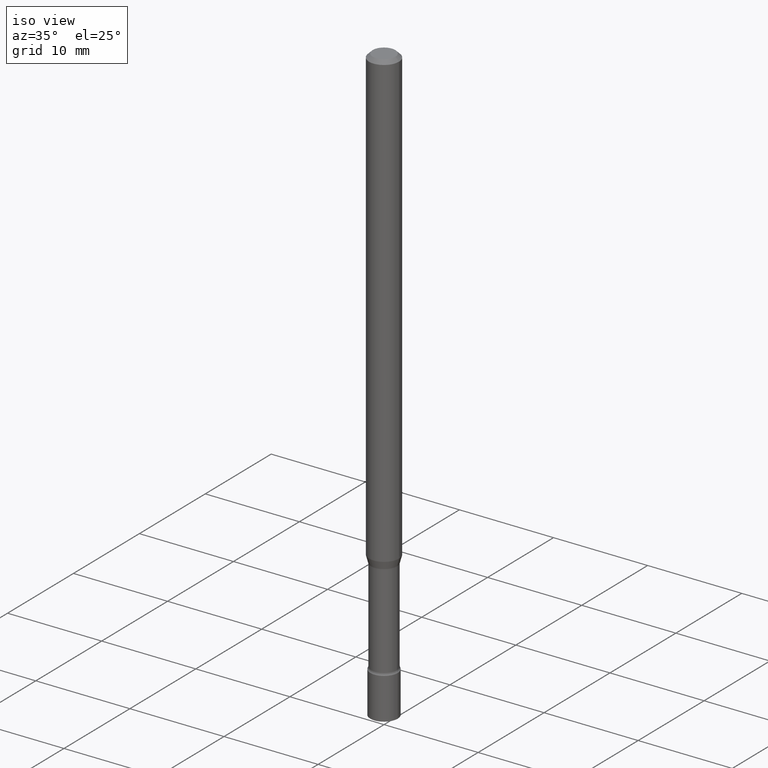
[diagram: clean part render]
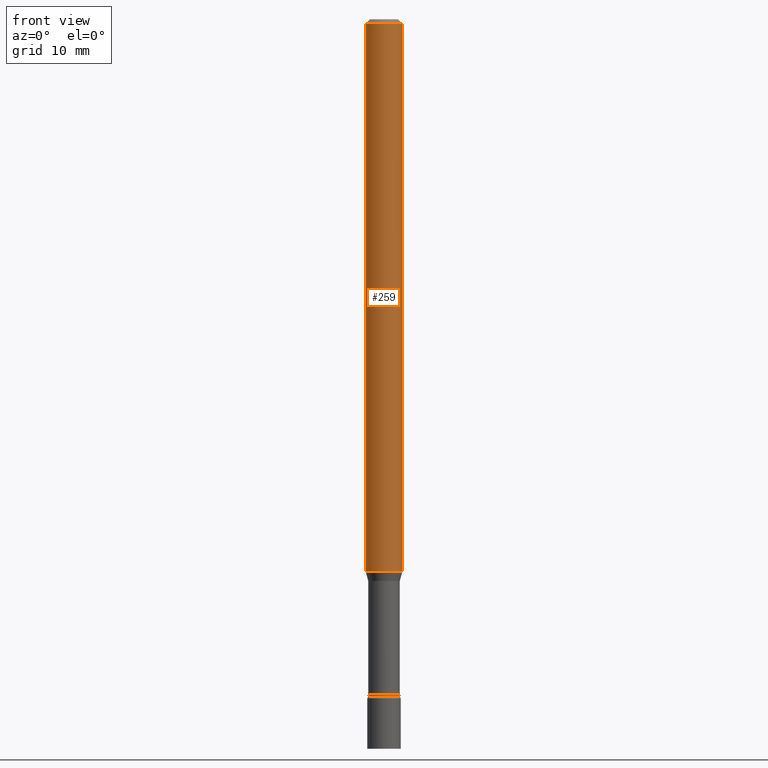
[diagram: tour spotlight — one face highlighted and labeled with its STEP entity id]
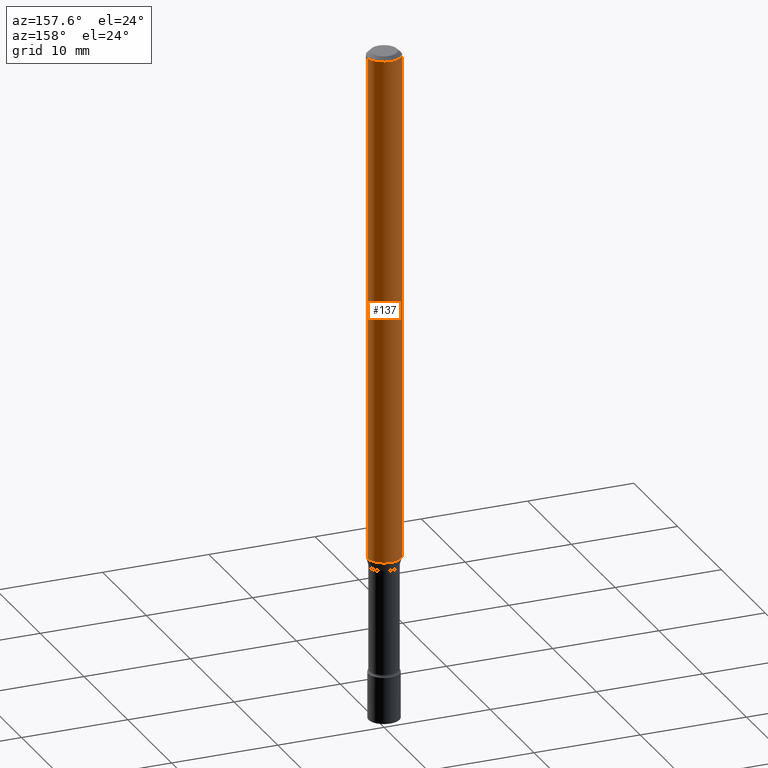
[diagram: tour spotlight — one face highlighted and labeled with its STEP entity id]
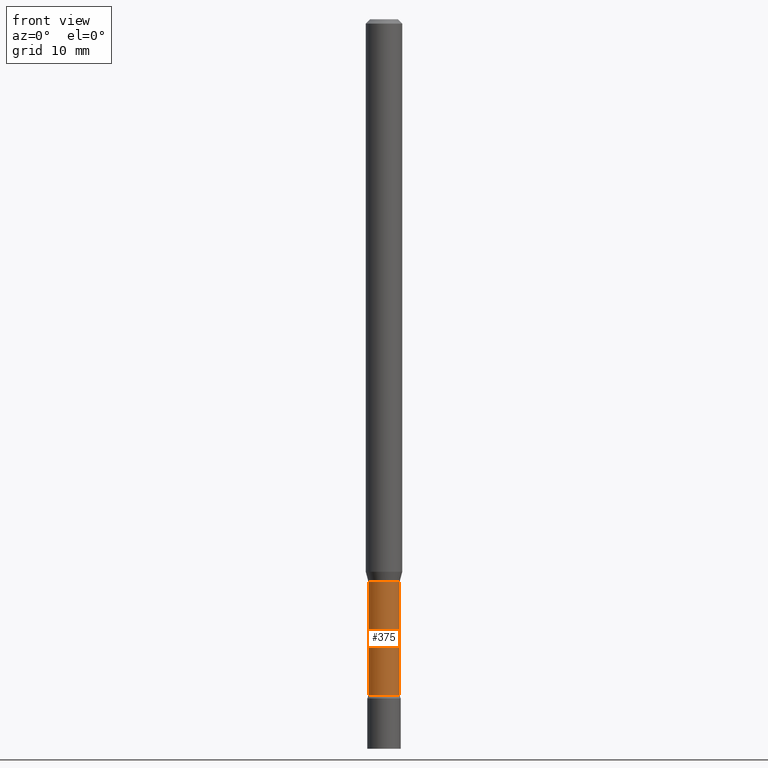
[diagram: tour spotlight — one face highlighted and labeled with its STEP entity id]
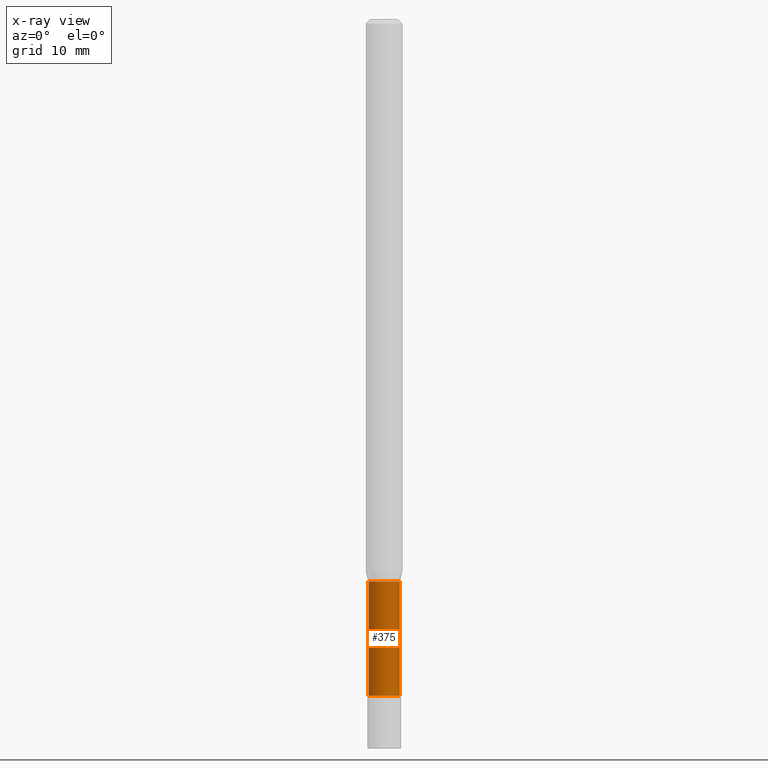
[diagram: x-ray of the same camera — body ghosted, this tour face saturated]
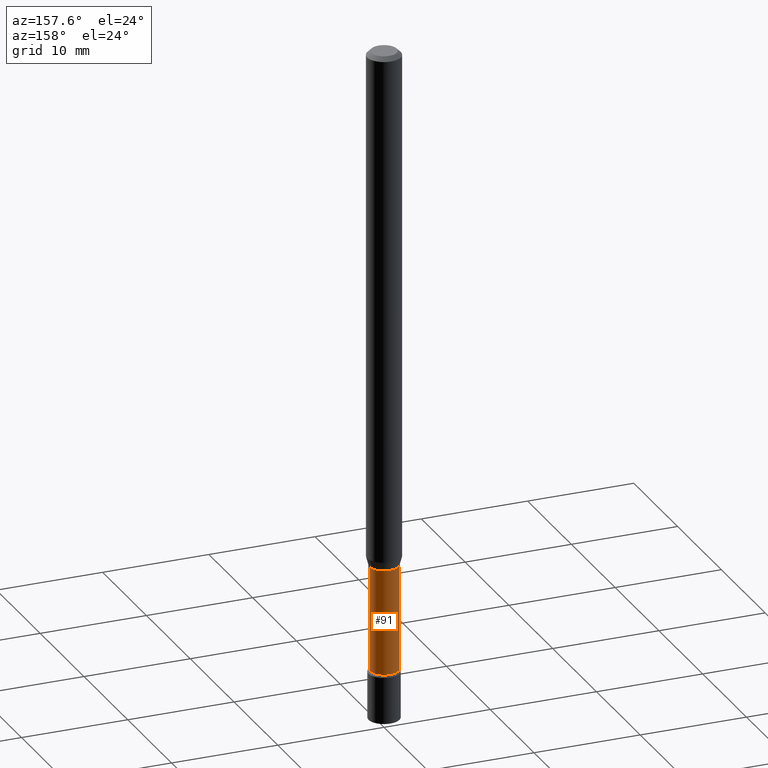
[diagram: tour spotlight — one face highlighted and labeled with its STEP entity id]
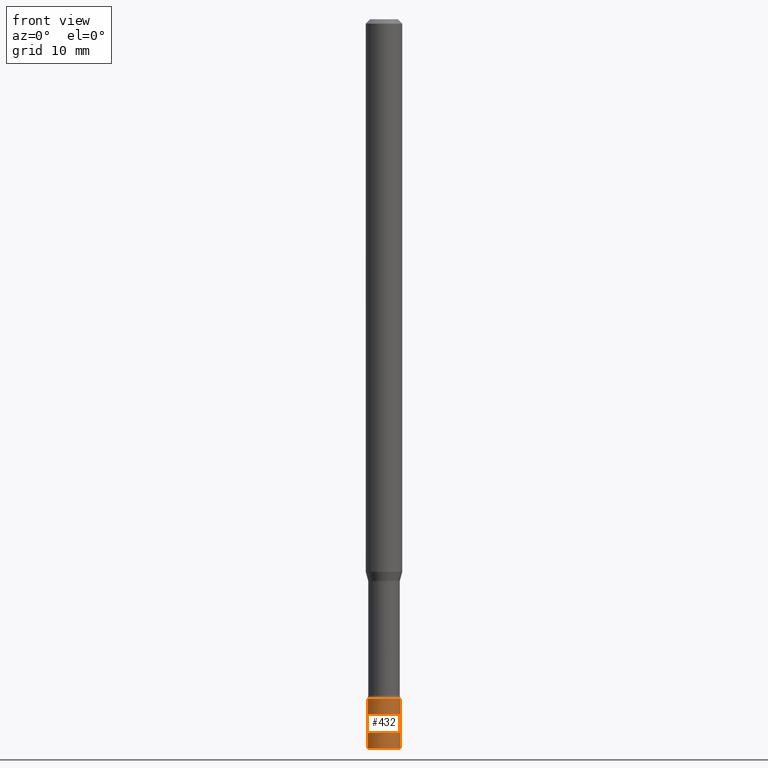
[diagram: tour spotlight — one face highlighted and labeled with its STEP entity id]
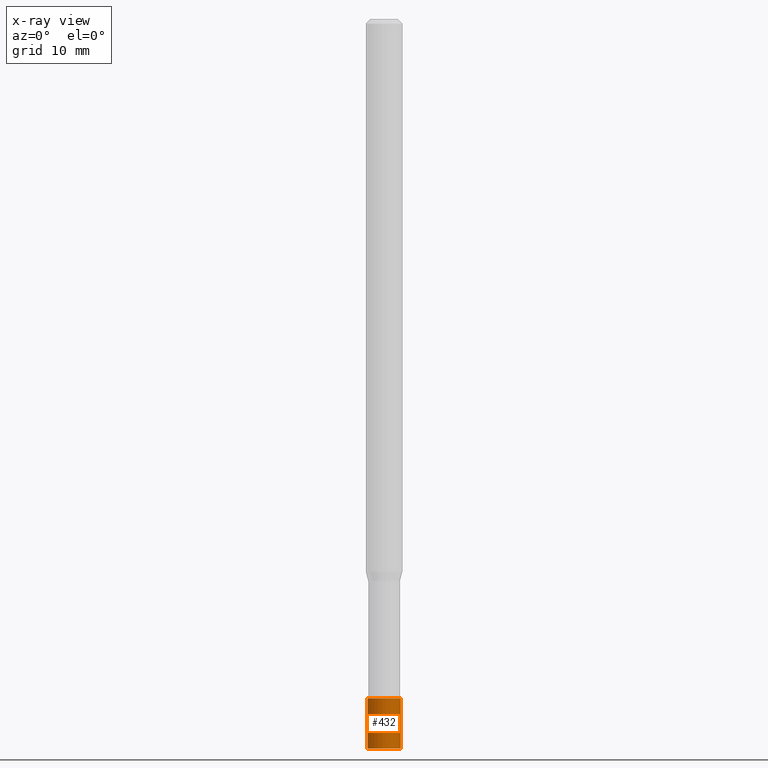
[diagram: x-ray of the same camera — body ghosted, this tour face saturated]
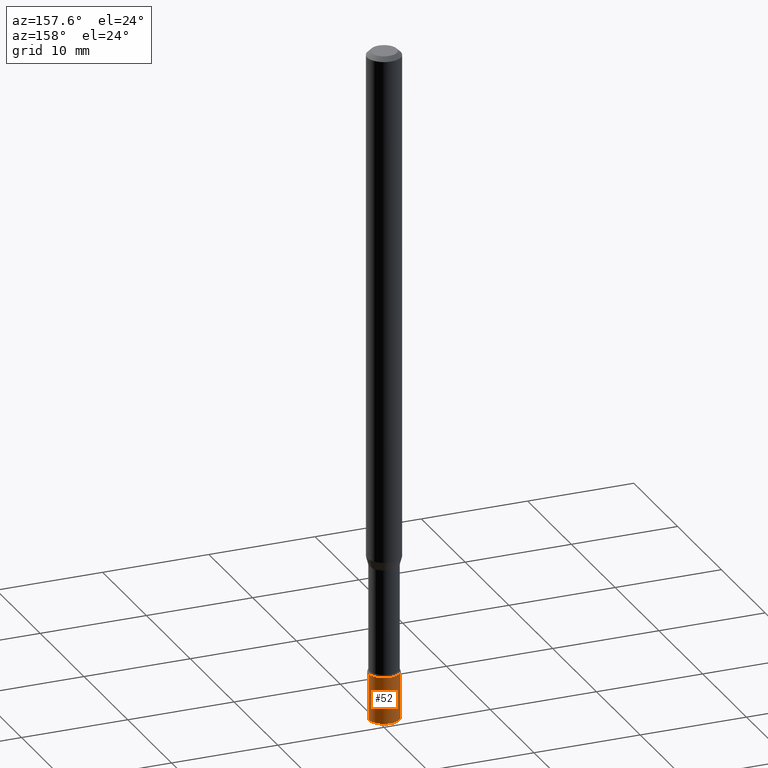
[diagram: tour spotlight — one face highlighted and labeled with its STEP entity id]
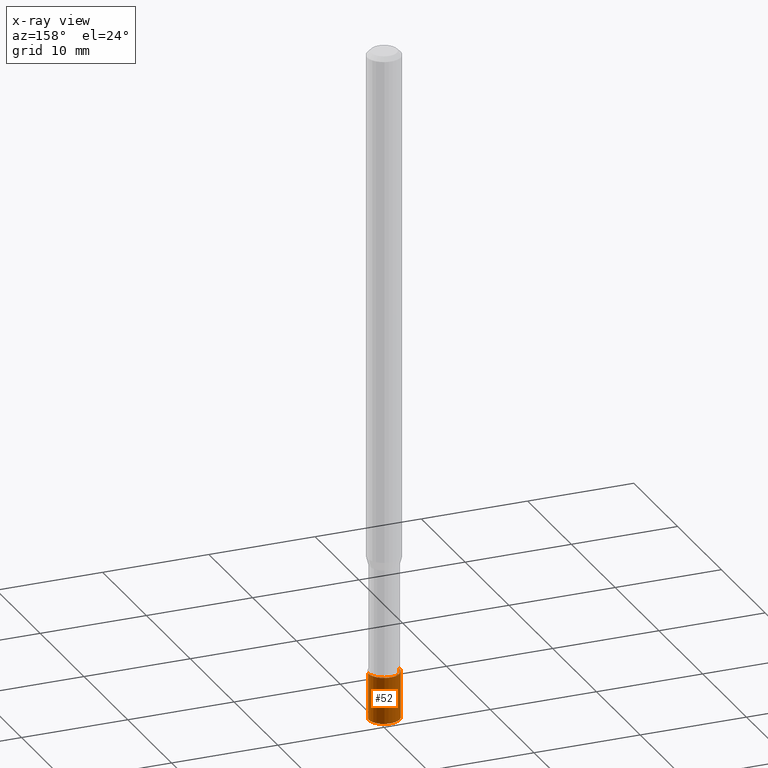
[diagram: x-ray of the same camera — body ghosted, this tour face saturated]
A machine part: a face-by-face anatomy tour. The part has 18 B-rep faces; the first image is the clean iso view, then the 6 largest visible faces are spotlighted one at a time (largest first), each with its STEP entity span.

Face 1 — front view, entity #259. In plain terms, the highlighted cylindrical surface (edge-blend (fillet) strip) has radius 1.5875 mm, axis along (-0, 0, 1).
Definition (entity closure, byte-faithful):
#19 = DIRECTION ( 'NONE',  ( 1.000000000000000000, -6.982962677686262766E-15, 0.000000000000000000 ) ) ;
#24 = DIRECTION ( 'NONE',  ( -2.445468806185136597E-29, 3.491481338843145583E-15, 1.000000000000000000 ) ) ;
#35 = EDGE_CURVE ( 'NONE', #359, #356, #108, .T. ) ;
#36 = CYLINDRICAL_SURFACE ( 'NONE', #308, 0.06250000000000000000 ) ;
#45 = VERTEX_POINT ( 'NONE', #329 ) ;
#46 = VECTOR ( 'NONE', #505, 39.37007874015748143 ) ;
#76 = EDGE_CURVE ( 'NONE', #356, #45, #100, .T. ) ;
#94 = AXIS2_PLACEMENT_3D ( 'NONE', #227, #24, #19 ) ;
#100 = LINE ( 'NONE', #338, #46 ) ;
#104 = EDGE_CURVE ( 'NONE', #399, #45, #407, .T. ) ;
#108 = CIRCLE ( 'NONE', #94, 0.06250000000000000000 ) ;
#117 = CARTESIAN_POINT ( 'NONE',  ( 3.668203209277712094E-31, -5.237222008264728876E-17, -0.01500000000000003067 ) ) ;
#156 = DIRECTION ( 'NONE',  ( 1.000000000000000000, -6.982962677686266711E-15, 4.876176775795935793E-29 ) ) ;
#170 = DIRECTION ( 'NONE',  ( 1.000000000000000000, -6.982962677686266711E-15, 0.000000000000000000 ) ) ;
#173 = ORIENTED_EDGE ( 'NONE', *, *, #104, .F. ) ;
#188 = AXIS2_PLACEMENT_3D ( 'NONE', #117, #442, #170 ) ;
#225 = CARTESIAN_POINT ( 'NONE',  ( -0.06250000000000000000, 4.440892098500626162E-16, -3.074334431409316114E-30 ) ) ;
#227 = CARTESIAN_POINT ( 'NONE',  ( 4.630407565017472543E-29, -6.610994817683517532E-15, -1.893464170676043112 ) ) ;
#233 = CARTESIAN_POINT ( 'NONE',  ( -0.06250000000000000000, -2.887594309033019887E-15, -0.01500000000000003067 ) ) ;
#235 = CARTESIAN_POINT ( 'NONE',  ( 0.000000000000000000, 0.000000000000000000, 0.000000000000000000 ) ) ;
#243 = VECTOR ( 'NONE', #262, 39.37007874015748143 ) ;
#259 = ADVANCED_FACE ( 'NONE', ( #390 ), #36, .T. ) ;
#262 = DIRECTION ( 'NONE',  ( -2.445468806185136877E-29, 3.491481338843145188E-15, 1.000000000000000000 ) ) ;
#266 = CARTESIAN_POINT ( 'NONE',  ( 0.06250000000000000000, -7.047429985038908412E-15, -1.893464170676043112 ) ) ;
#275 = ORIENTED_EDGE ( 'NONE', *, *, #490, .F. ) ;
#308 = AXIS2_PLACEMENT_3D ( 'NONE', #235, #426, #156 ) ;
#329 = CARTESIAN_POINT ( 'NONE',  ( 0.06250000000000000000, -4.888073874380389458E-16, -0.01500000000000003067 ) ) ;
#338 = CARTESIAN_POINT ( 'NONE',  ( 0.06250000000000000000, -4.364351673553916694E-16, 3.047610484872459871E-30 ) ) ;
#345 = CARTESIAN_POINT ( 'NONE',  ( -0.06250000000000000000, -6.166905607833454916E-15, -1.893464170676043112 ) ) ;
#346 = ORIENTED_EDGE ( 'NONE', *, *, #76, .T. ) ;
#356 = VERTEX_POINT ( 'NONE', #266 ) ;
#359 = VERTEX_POINT ( 'NONE', #345 ) ;
#390 = FACE_OUTER_BOUND ( 'NONE', #449, .T. ) ;
#399 = VERTEX_POINT ( 'NONE', #233 ) ;
#407 = CIRCLE ( 'NONE', #188, 0.06250000000000000000 ) ;
#426 = DIRECTION ( 'NONE',  ( -2.445468806185136597E-29, 3.491481338843145583E-15, 1.000000000000000000 ) ) ;
#442 = DIRECTION ( 'NONE',  ( -2.445468806185136597E-29, 3.491481338843145583E-15, 1.000000000000000000 ) ) ;
#449 = EDGE_LOOP ( 'NONE', ( #275, #501, #346, #173 ) ) ;
#452 = LINE ( 'NONE', #225, #243 ) ;
#490 = EDGE_CURVE ( 'NONE', #359, #399, #452, .T. ) ;
#501 = ORIENTED_EDGE ( 'NONE', *, *, #35, .T. ) ;
#505 = DIRECTION ( 'NONE',  ( -2.445468806185136877E-29, 3.491481338843145188E-15, 1.000000000000000000 ) ) ;

Face 2 — auxiliary view, entity #137. In plain terms, the highlighted cylindrical surface (edge-blend (fillet) strip) has radius 1.5875 mm, axis along (-0, 0, 1).
Definition (entity closure, byte-faithful):
#23 = ORIENTED_EDGE ( 'NONE', *, *, #76, .F. ) ;
#45 = VERTEX_POINT ( 'NONE', #329 ) ;
#46 = VECTOR ( 'NONE', #505, 39.37007874015748143 ) ;
#49 = ORIENTED_EDGE ( 'NONE', *, *, #490, .T. ) ;
#61 = EDGE_CURVE ( 'NONE', #45, #399, #435, .T. ) ;
#68 = CYLINDRICAL_SURFACE ( 'NONE', #331, 0.06250000000000000000 ) ;
#76 = EDGE_CURVE ( 'NONE', #356, #45, #100, .T. ) ;
#100 = LINE ( 'NONE', #338, #46 ) ;
#101 = CARTESIAN_POINT ( 'NONE',  ( 4.630407565017472543E-29, -6.610994817683517532E-15, -1.893464170676043112 ) ) ;
#106 = CARTESIAN_POINT ( 'NONE',  ( 0.000000000000000000, 0.000000000000000000, 0.000000000000000000 ) ) ;
#124 = ORIENTED_EDGE ( 'NONE', *, *, #61, .F. ) ;
#137 = ADVANCED_FACE ( 'NONE', ( #374 ), #68, .T. ) ;
#143 = CARTESIAN_POINT ( 'NONE',  ( 3.668203209277712094E-31, -5.237222008264728876E-17, -0.01500000000000003067 ) ) ;
#147 = EDGE_LOOP ( 'NONE', ( #486, #49, #124, #23 ) ) ;
#165 = CIRCLE ( 'NONE', #448, 0.06250000000000000000 ) ;
#219 = EDGE_CURVE ( 'NONE', #356, #359, #165, .T. ) ;
#225 = CARTESIAN_POINT ( 'NONE',  ( -0.06250000000000000000, 4.440892098500626162E-16, -3.074334431409316114E-30 ) ) ;
#229 = DIRECTION ( 'NONE',  ( 1.000000000000000000, -6.982962677686266711E-15, 4.876176775795935793E-29 ) ) ;
#233 = CARTESIAN_POINT ( 'NONE',  ( -0.06250000000000000000, -2.887594309033019887E-15, -0.01500000000000003067 ) ) ;
#243 = VECTOR ( 'NONE', #262, 39.37007874015748143 ) ;
#257 = DIRECTION ( 'NONE',  ( -2.445468806185136597E-29, 3.491481338843145583E-15, 1.000000000000000000 ) ) ;
#262 = DIRECTION ( 'NONE',  ( -2.445468806185136877E-29, 3.491481338843145188E-15, 1.000000000000000000 ) ) ;
#266 = CARTESIAN_POINT ( 'NONE',  ( 0.06250000000000000000, -7.047429985038908412E-15, -1.893464170676043112 ) ) ;
#329 = CARTESIAN_POINT ( 'NONE',  ( 0.06250000000000000000, -4.888073874380389458E-16, -0.01500000000000003067 ) ) ;
#331 = AXIS2_PLACEMENT_3D ( 'NONE', #106, #423, #229 ) ;
#338 = CARTESIAN_POINT ( 'NONE',  ( 0.06250000000000000000, -4.364351673553916694E-16, 3.047610484872459871E-30 ) ) ;
#345 = CARTESIAN_POINT ( 'NONE',  ( -0.06250000000000000000, -6.166905607833454916E-15, -1.893464170676043112 ) ) ;
#356 = VERTEX_POINT ( 'NONE', #266 ) ;
#359 = VERTEX_POINT ( 'NONE', #345 ) ;
#374 = FACE_OUTER_BOUND ( 'NONE', #147, .T. ) ;
#384 = AXIS2_PLACEMENT_3D ( 'NONE', #143, #420, #498 ) ;
#399 = VERTEX_POINT ( 'NONE', #233 ) ;
#415 = DIRECTION ( 'NONE',  ( 1.000000000000000000, -6.982962677686262766E-15, 0.000000000000000000 ) ) ;
#420 = DIRECTION ( 'NONE',  ( -2.445468806185136597E-29, 3.491481338843145583E-15, 1.000000000000000000 ) ) ;
#423 = DIRECTION ( 'NONE',  ( -2.445468806185136597E-29, 3.491481338843145583E-15, 1.000000000000000000 ) ) ;
#435 = CIRCLE ( 'NONE', #384, 0.06250000000000000000 ) ;
#448 = AXIS2_PLACEMENT_3D ( 'NONE', #101, #257, #415 ) ;
#452 = LINE ( 'NONE', #225, #243 ) ;
#486 = ORIENTED_EDGE ( 'NONE', *, *, #219, .T. ) ;
#490 = EDGE_CURVE ( 'NONE', #359, #399, #452, .T. ) ;
#498 = DIRECTION ( 'NONE',  ( 1.000000000000000000, -6.982962677686266711E-15, 0.000000000000000000 ) ) ;
#505 = DIRECTION ( 'NONE',  ( -2.445468806185136877E-29, 3.491481338843145188E-15, 1.000000000000000000 ) ) ;

Face 3 — front view, entity #375. An x-ray twin of the same camera follows (body ghosted, this face saturated) — the face is partly hidden behind the body. In plain terms, the highlighted cylindrical surface (edge-blend (fillet) strip) has radius 1.3729 mm, axis along (-0, 0, 1).
Definition (entity closure, byte-faithful):
#25 = AXIS2_PLACEMENT_3D ( 'NONE', #285, #355, #168 ) ;
#31 = DIRECTION ( 'NONE',  ( -2.445468806185136597E-29, 3.491481338843145583E-15, 1.000000000000000000 ) ) ;
#48 = CARTESIAN_POINT ( 'NONE',  ( -0.05405000000000004939, -7.711663977217294376E-15, -2.317429341715430802 ) ) ;
#72 = CYLINDRICAL_SURFACE ( 'NONE', #369, 0.05405000000000002858 ) ;
#89 = LINE ( 'NONE', #247, #455 ) ;
#93 = ORIENTED_EDGE ( 'NONE', *, *, #96, .T. ) ;
#96 = EDGE_CURVE ( 'NONE', #119, #265, #112, .T. ) ;
#111 = VERTEX_POINT ( 'NONE', #320 ) ;
#112 = LINE ( 'NONE', #516, #286 ) ;
#119 = VERTEX_POINT ( 'NONE', #206 ) ;
#126 = EDGE_CURVE ( 'NONE', #111, #265, #135, .T. ) ;
#132 = EDGE_CURVE ( 'NONE', #479, #111, #89, .T. ) ;
#135 = CIRCLE ( 'NONE', #25, 0.05405000000000000082 ) ;
#148 = CARTESIAN_POINT ( 'NONE',  ( 0.05405000000000000082, -7.105425643580075581E-15, -1.926974787463811012 ) ) ;
#168 = DIRECTION ( 'NONE',  ( 1.000000000000000000, -6.982962677686266711E-15, 0.000000000000000000 ) ) ;
#206 = CARTESIAN_POINT ( 'NONE',  ( 0.05405000000000004939, -8.468690433415923797E-15, -2.317429341715430802 ) ) ;
#231 = CARTESIAN_POINT ( 'NONE',  ( 0.000000000000000000, 0.000000000000000000, 0.000000000000000000 ) ) ;
#242 = ORIENTED_EDGE ( 'NONE', *, *, #126, .F. ) ;
#247 = CARTESIAN_POINT ( 'NONE',  ( -0.05405000000000002858, 3.840483486783343535E-16, -2.658684416282777892E-30 ) ) ;
#265 = VERTEX_POINT ( 'NONE', #148 ) ;
#268 = DIRECTION ( 'NONE',  ( -2.445468806185136877E-29, 3.491481338843145188E-15, 1.000000000000000000 ) ) ;
#270 = AXIS2_PLACEMENT_3D ( 'NONE', #468, #421, #309 ) ;
#285 = CARTESIAN_POINT ( 'NONE',  ( 4.712356733047983098E-29, -6.727996510851133099E-15, -1.926974787463811012 ) ) ;
#286 = VECTOR ( 'NONE', #268, 39.37007874015748143 ) ;
#309 = DIRECTION ( 'NONE',  ( 1.000000000000000000, -6.982962677686260400E-15, 0.000000000000000000 ) ) ;
#317 = EDGE_LOOP ( 'NONE', ( #518, #483, #93, #242 ) ) ;
#320 = CARTESIAN_POINT ( 'NONE',  ( -0.05405000000000000082, -7.025580557090721966E-15, -1.926974787463811012 ) ) ;
#336 = EDGE_CURVE ( 'NONE', #479, #119, #436, .T. ) ;
#348 = DIRECTION ( 'NONE',  ( 1.000000000000000000, -6.982962677686266711E-15, 4.876176775795935232E-29 ) ) ;
#355 = DIRECTION ( 'NONE',  ( -2.445468806185136597E-29, 3.491481338843145583E-15, 1.000000000000000000 ) ) ;
#369 = AXIS2_PLACEMENT_3D ( 'NONE', #231, #31, #348 ) ;
#375 = ADVANCED_FACE ( 'NONE', ( #388 ), #72, .T. ) ;
#388 = FACE_OUTER_BOUND ( 'NONE', #317, .T. ) ;
#421 = DIRECTION ( 'NONE',  ( -2.445468806185136597E-29, 3.491481338843145583E-15, 1.000000000000000000 ) ) ;
#436 = CIRCLE ( 'NONE', #270, 0.05405000000000004939 ) ;
#455 = VECTOR ( 'NONE', #467, 39.37007874015748143 ) ;
#467 = DIRECTION ( 'NONE',  ( -2.445468806185136877E-29, 3.491481338843145188E-15, 1.000000000000000000 ) ) ;
#468 = CARTESIAN_POINT ( 'NONE',  ( 5.667201165703240905E-29, -8.091261300686981315E-15, -2.317429341715430802 ) ) ;
#479 = VERTEX_POINT ( 'NONE', #48 ) ;
#483 = ORIENTED_EDGE ( 'NONE', *, *, #336, .T. ) ;
#516 = CARTESIAN_POINT ( 'NONE',  ( 0.05405000000000002858, -3.774291327289429259E-16, 2.635573547317704341E-30 ) ) ;
#518 = ORIENTED_EDGE ( 'NONE', *, *, #132, .F. ) ;

Face 4 — auxiliary view, entity #91. In plain terms, the highlighted cylindrical surface (edge-blend (fillet) strip) has radius 1.3729 mm, axis along (-0, 0, 1).
Definition (entity closure, byte-faithful):
#5 = EDGE_LOOP ( 'NONE', ( #430, #248, #288, #510 ) ) ;
#26 = DIRECTION ( 'NONE',  ( 1.000000000000000000, -6.982962677686266711E-15, 0.000000000000000000 ) ) ;
#38 = CIRCLE ( 'NONE', #47, 0.05405000000000000082 ) ;
#47 = AXIS2_PLACEMENT_3D ( 'NONE', #107, #73, #26 ) ;
#48 = CARTESIAN_POINT ( 'NONE',  ( -0.05405000000000004939, -7.711663977217294376E-15, -2.317429341715430802 ) ) ;
#56 = AXIS2_PLACEMENT_3D ( 'NONE', #125, #520, #358 ) ;
#59 = FACE_OUTER_BOUND ( 'NONE', #5, .T. ) ;
#73 = DIRECTION ( 'NONE',  ( -2.445468806185136597E-29, 3.491481338843145583E-15, 1.000000000000000000 ) ) ;
#89 = LINE ( 'NONE', #247, #455 ) ;
#91 = ADVANCED_FACE ( 'NONE', ( #59 ), #413, .T. ) ;
#96 = EDGE_CURVE ( 'NONE', #119, #265, #112, .T. ) ;
#102 = EDGE_CURVE ( 'NONE', #119, #479, #164, .T. ) ;
#107 = CARTESIAN_POINT ( 'NONE',  ( 4.712356733047983098E-29, -6.727996510851133099E-15, -1.926974787463811012 ) ) ;
#111 = VERTEX_POINT ( 'NONE', #320 ) ;
#112 = LINE ( 'NONE', #516, #286 ) ;
#119 = VERTEX_POINT ( 'NONE', #206 ) ;
#125 = CARTESIAN_POINT ( 'NONE',  ( 5.667201165703240905E-29, -8.091261300686981315E-15, -2.317429341715430802 ) ) ;
#130 = DIRECTION ( 'NONE',  ( -2.445468806185136597E-29, 3.491481338843145583E-15, 1.000000000000000000 ) ) ;
#132 = EDGE_CURVE ( 'NONE', #479, #111, #89, .T. ) ;
#148 = CARTESIAN_POINT ( 'NONE',  ( 0.05405000000000000082, -7.105425643580075581E-15, -1.926974787463811012 ) ) ;
#164 = CIRCLE ( 'NONE', #56, 0.05405000000000004939 ) ;
#206 = CARTESIAN_POINT ( 'NONE',  ( 0.05405000000000004939, -8.468690433415923797E-15, -2.317429341715430802 ) ) ;
#247 = CARTESIAN_POINT ( 'NONE',  ( -0.05405000000000002858, 3.840483486783343535E-16, -2.658684416282777892E-30 ) ) ;
#248 = ORIENTED_EDGE ( 'NONE', *, *, #132, .T. ) ;
#265 = VERTEX_POINT ( 'NONE', #148 ) ;
#268 = DIRECTION ( 'NONE',  ( -2.445468806185136877E-29, 3.491481338843145188E-15, 1.000000000000000000 ) ) ;
#286 = VECTOR ( 'NONE', #268, 39.37007874015748143 ) ;
#288 = ORIENTED_EDGE ( 'NONE', *, *, #344, .F. ) ;
#320 = CARTESIAN_POINT ( 'NONE',  ( -0.05405000000000000082, -7.025580557090721966E-15, -1.926974787463811012 ) ) ;
#326 = DIRECTION ( 'NONE',  ( 1.000000000000000000, -6.982962677686266711E-15, 4.876176775795935232E-29 ) ) ;
#337 = AXIS2_PLACEMENT_3D ( 'NONE', #364, #130, #326 ) ;
#344 = EDGE_CURVE ( 'NONE', #265, #111, #38, .T. ) ;
#358 = DIRECTION ( 'NONE',  ( 1.000000000000000000, -6.982962677686260400E-15, 0.000000000000000000 ) ) ;
#364 = CARTESIAN_POINT ( 'NONE',  ( 0.000000000000000000, 0.000000000000000000, 0.000000000000000000 ) ) ;
#413 = CYLINDRICAL_SURFACE ( 'NONE', #337, 0.05405000000000002858 ) ;
#430 = ORIENTED_EDGE ( 'NONE', *, *, #102, .T. ) ;
#455 = VECTOR ( 'NONE', #467, 39.37007874015748143 ) ;
#467 = DIRECTION ( 'NONE',  ( -2.445468806185136877E-29, 3.491481338843145188E-15, 1.000000000000000000 ) ) ;
#479 = VERTEX_POINT ( 'NONE', #48 ) ;
#510 = ORIENTED_EDGE ( 'NONE', *, *, #96, .F. ) ;
#516 = CARTESIAN_POINT ( 'NONE',  ( 0.05405000000000002858, -3.774291327289429259E-16, 2.635573547317704341E-30 ) ) ;
#520 = DIRECTION ( 'NONE',  ( -2.445468806185136597E-29, 3.491481338843145583E-15, 1.000000000000000000 ) ) ;

Face 5 — front view, entity #432. An x-ray twin of the same camera follows (body ghosted, this face saturated) — the face is partly hidden behind the body. In plain terms, the highlighted cylindrical surface (edge-blend (fillet) strip) has radius 1.4605 mm, axis along (-0, 0, 1).
Definition (entity closure, byte-faithful):
#51 = ORIENTED_EDGE ( 'NONE', *, *, #53, .F. ) ;
#53 = EDGE_CURVE ( 'NONE', #152, #205, #189, .T. ) ;
#54 = DIRECTION ( 'NONE',  ( 1.000000000000000000, -6.982962677686265922E-15, 4.876176775795935232E-29 ) ) ;
#57 = VECTOR ( 'NONE', #509, 39.37007874015748143 ) ;
#66 = EDGE_CURVE ( 'NONE', #205, #158, #269, .T. ) ;
#71 = AXIS2_PLACEMENT_3D ( 'NONE', #178, #140, #418 ) ;
#78 = FACE_OUTER_BOUND ( 'NONE', #444, .T. ) ;
#140 = DIRECTION ( 'NONE',  ( -2.445468806185136597E-29, 3.491481338843145583E-15, 1.000000000000000000 ) ) ;
#152 = VERTEX_POINT ( 'NONE', #283 ) ;
#158 = VERTEX_POINT ( 'NONE', #450 ) ;
#178 = CARTESIAN_POINT ( 'NONE',  ( 5.690605911992812897E-29, -8.124677075487999464E-15, -2.326999999999999957 ) ) ;
#189 = LINE ( 'NONE', #256, #367 ) ;
#191 = DIRECTION ( 'NONE',  ( -2.445468806185136597E-29, 3.491481338843145583E-15, 1.000000000000000000 ) ) ;
#197 = CARTESIAN_POINT ( 'NONE',  ( 0.05750000000000000250, -9.130223701074824963E-15, -2.500000000000000000 ) ) ;
#205 = VERTEX_POINT ( 'NONE', #330 ) ;
#207 = DIRECTION ( 'NONE',  ( -2.445468806185136597E-29, 3.491481338843145583E-15, 1.000000000000000000 ) ) ;
#215 = CIRCLE ( 'NONE', #332, 0.05750000000000000250 ) ;
#228 = CARTESIAN_POINT ( 'NONE',  ( 0.05750000000000000250, -4.015203539669603161E-16, 2.803801646082662941E-30 ) ) ;
#239 = ORIENTED_EDGE ( 'NONE', *, *, #66, .F. ) ;
#256 = CARTESIAN_POINT ( 'NONE',  ( -0.05750000000000000250, 4.085620730620576246E-16, -2.828387676896570712E-30 ) ) ;
#258 = ORIENTED_EDGE ( 'NONE', *, *, #279, .T. ) ;
#264 = CYLINDRICAL_SURFACE ( 'NONE', #324, 0.05750000000000000250 ) ;
#269 = CIRCLE ( 'NONE', #71, 0.05750000000000000250 ) ;
#272 = LINE ( 'NONE', #228, #57 ) ;
#279 = EDGE_CURVE ( 'NONE', #312, #158, #272, .T. ) ;
#283 = CARTESIAN_POINT ( 'NONE',  ( -0.05750000000000000250, -8.018128138235874628E-15, -2.500000000000000000 ) ) ;
#305 = CARTESIAN_POINT ( 'NONE',  ( 6.113672015462842613E-29, -8.728703347107864943E-15, -2.500000000000000000 ) ) ;
#310 = DIRECTION ( 'NONE',  ( 1.000000000000000000, -6.982962677686256455E-15, 0.000000000000000000 ) ) ;
#312 = VERTEX_POINT ( 'NONE', #197 ) ;
#316 = CARTESIAN_POINT ( 'NONE',  ( 0.000000000000000000, 0.000000000000000000, 0.000000000000000000 ) ) ;
#324 = AXIS2_PLACEMENT_3D ( 'NONE', #316, #207, #54 ) ;
#330 = CARTESIAN_POINT ( 'NONE',  ( -0.05750000000000000250, -8.018128138235874628E-15, -2.326999999999999957 ) ) ;
#332 = AXIS2_PLACEMENT_3D ( 'NONE', #305, #191, #310 ) ;
#333 = DIRECTION ( 'NONE',  ( -2.445468806185136877E-29, 3.491481338843145188E-15, 1.000000000000000000 ) ) ;
#367 = VECTOR ( 'NONE', #333, 39.37007874015748143 ) ;
#378 = EDGE_CURVE ( 'NONE', #152, #312, #215, .T. ) ;
#385 = ORIENTED_EDGE ( 'NONE', *, *, #378, .T. ) ;
#418 = DIRECTION ( 'NONE',  ( 1.000000000000000000, -6.982962677686273810E-15, 0.000000000000000000 ) ) ;
#432 = ADVANCED_FACE ( 'NONE', ( #78 ), #264, .T. ) ;
#444 = EDGE_LOOP ( 'NONE', ( #51, #385, #258, #239 ) ) ;
#450 = CARTESIAN_POINT ( 'NONE',  ( 0.05750000000000000250, -8.526197429454961062E-15, -2.326999999999999957 ) ) ;
#509 = DIRECTION ( 'NONE',  ( -2.445468806185136877E-29, 3.491481338843145188E-15, 1.000000000000000000 ) ) ;

Face 6 — auxiliary view, entity #52. An x-ray twin of the same camera follows (body ghosted, this face saturated) — the face is partly hidden behind the body. In plain terms, the highlighted cylindrical surface (edge-blend (fillet) strip) has radius 1.4605 mm, axis along (-0, 0, 1).
Definition (entity closure, byte-faithful):
#7 = ORIENTED_EDGE ( 'NONE', *, *, #279, .F. ) ;
#52 = ADVANCED_FACE ( 'NONE', ( #409 ), #138, .T. ) ;
#53 = EDGE_CURVE ( 'NONE', #152, #205, #189, .T. ) ;
#57 = VECTOR ( 'NONE', #509, 39.37007874015748143 ) ;
#63 = CIRCLE ( 'NONE', #251, 0.05750000000000000250 ) ;
#95 = AXIS2_PLACEMENT_3D ( 'NONE', #160, #195, #503 ) ;
#115 = DIRECTION ( 'NONE',  ( -2.445468806185136597E-29, 3.491481338843145583E-15, 1.000000000000000000 ) ) ;
#138 = CYLINDRICAL_SURFACE ( 'NONE', #314, 0.05750000000000000250 ) ;
#152 = VERTEX_POINT ( 'NONE', #283 ) ;
#158 = VERTEX_POINT ( 'NONE', #450 ) ;
#160 = CARTESIAN_POINT ( 'NONE',  ( 6.113672015462842613E-29, -8.728703347107864943E-15, -2.500000000000000000 ) ) ;
#162 = ORIENTED_EDGE ( 'NONE', *, *, #417, .F. ) ;
#181 = DIRECTION ( 'NONE',  ( 1.000000000000000000, -6.982962677686265922E-15, 4.876176775795935232E-29 ) ) ;
#189 = LINE ( 'NONE', #256, #367 ) ;
#195 = DIRECTION ( 'NONE',  ( -2.445468806185136597E-29, 3.491481338843145583E-15, 1.000000000000000000 ) ) ;
#197 = CARTESIAN_POINT ( 'NONE',  ( 0.05750000000000000250, -9.130223701074824963E-15, -2.500000000000000000 ) ) ;
#205 = VERTEX_POINT ( 'NONE', #330 ) ;
#228 = CARTESIAN_POINT ( 'NONE',  ( 0.05750000000000000250, -4.015203539669603161E-16, 2.803801646082662941E-30 ) ) ;
#245 = ORIENTED_EDGE ( 'NONE', *, *, #290, .T. ) ;
#251 = AXIS2_PLACEMENT_3D ( 'NONE', #271, #115, #386 ) ;
#256 = CARTESIAN_POINT ( 'NONE',  ( -0.05750000000000000250, 4.085620730620576246E-16, -2.828387676896570712E-30 ) ) ;
#271 = CARTESIAN_POINT ( 'NONE',  ( 5.690605911992812897E-29, -8.124677075487999464E-15, -2.326999999999999957 ) ) ;
#272 = LINE ( 'NONE', #228, #57 ) ;
#279 = EDGE_CURVE ( 'NONE', #312, #158, #272, .T. ) ;
#283 = CARTESIAN_POINT ( 'NONE',  ( -0.05750000000000000250, -8.018128138235874628E-15, -2.500000000000000000 ) ) ;
#290 = EDGE_CURVE ( 'NONE', #312, #152, #315, .T. ) ;
#312 = VERTEX_POINT ( 'NONE', #197 ) ;
#314 = AXIS2_PLACEMENT_3D ( 'NONE', #334, #377, #181 ) ;
#315 = CIRCLE ( 'NONE', #95, 0.05750000000000000250 ) ;
#330 = CARTESIAN_POINT ( 'NONE',  ( -0.05750000000000000250, -8.018128138235874628E-15, -2.326999999999999957 ) ) ;
#333 = DIRECTION ( 'NONE',  ( -2.445468806185136877E-29, 3.491481338843145188E-15, 1.000000000000000000 ) ) ;
#334 = CARTESIAN_POINT ( 'NONE',  ( 0.000000000000000000, 0.000000000000000000, 0.000000000000000000 ) ) ;
#367 = VECTOR ( 'NONE', #333, 39.37007874015748143 ) ;
#377 = DIRECTION ( 'NONE',  ( -2.445468806185136597E-29, 3.491481338843145583E-15, 1.000000000000000000 ) ) ;
#386 = DIRECTION ( 'NONE',  ( 1.000000000000000000, -6.982962677686273810E-15, 0.000000000000000000 ) ) ;
#395 = ORIENTED_EDGE ( 'NONE', *, *, #53, .T. ) ;
#409 = FACE_OUTER_BOUND ( 'NONE', #478, .T. ) ;
#417 = EDGE_CURVE ( 'NONE', #158, #205, #63, .T. ) ;
#450 = CARTESIAN_POINT ( 'NONE',  ( 0.05750000000000000250, -8.526197429454961062E-15, -2.326999999999999957 ) ) ;
#478 = EDGE_LOOP ( 'NONE', ( #245, #395, #162, #7 ) ) ;
#503 = DIRECTION ( 'NONE',  ( 1.000000000000000000, -6.982962677686256455E-15, 0.000000000000000000 ) ) ;
#509 = DIRECTION ( 'NONE',  ( -2.445468806185136877E-29, 3.491481338843145188E-15, 1.000000000000000000 ) ) ;